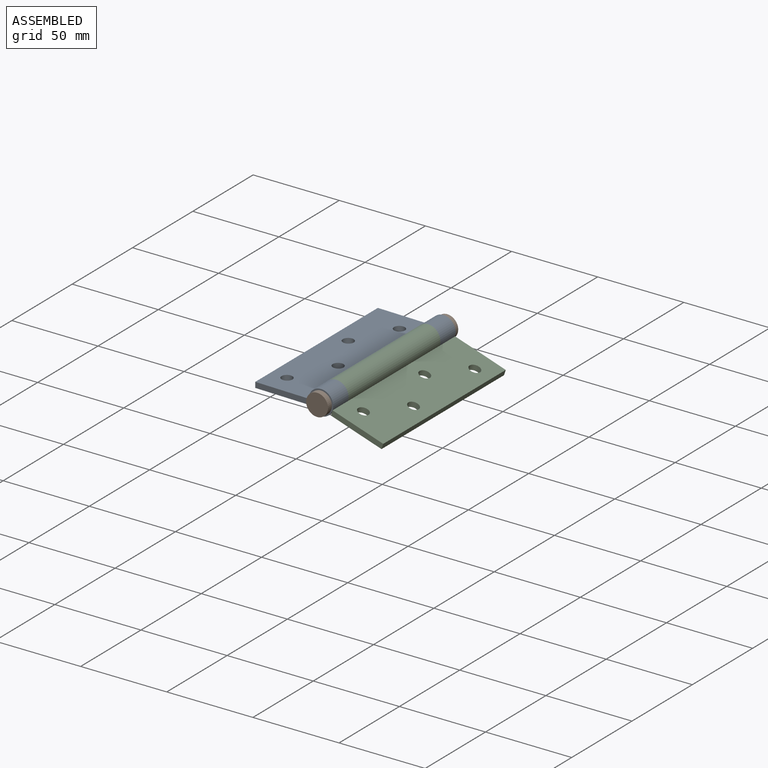
[diagram: assembled view]
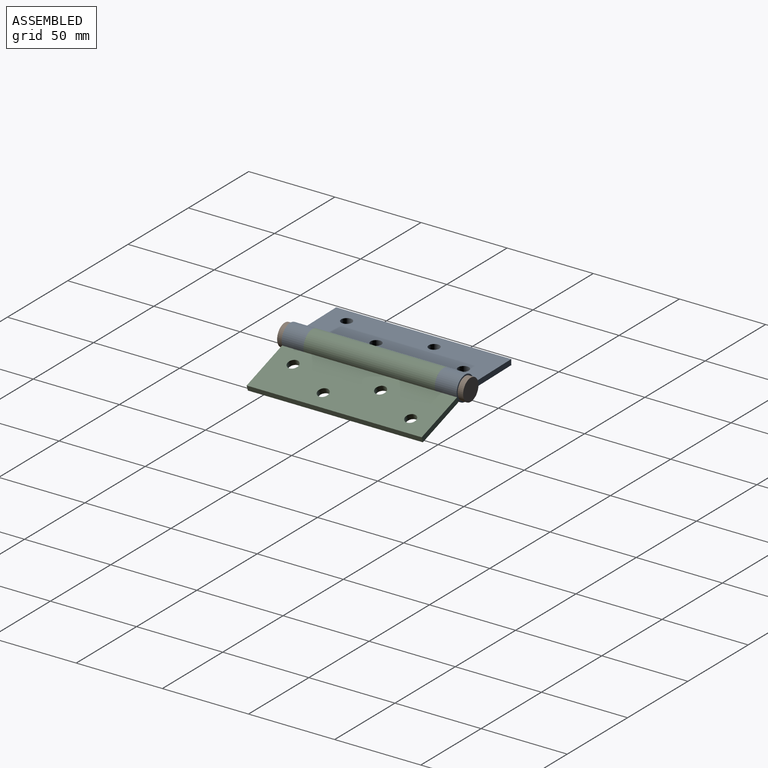
[diagram: assembled view, second angle]
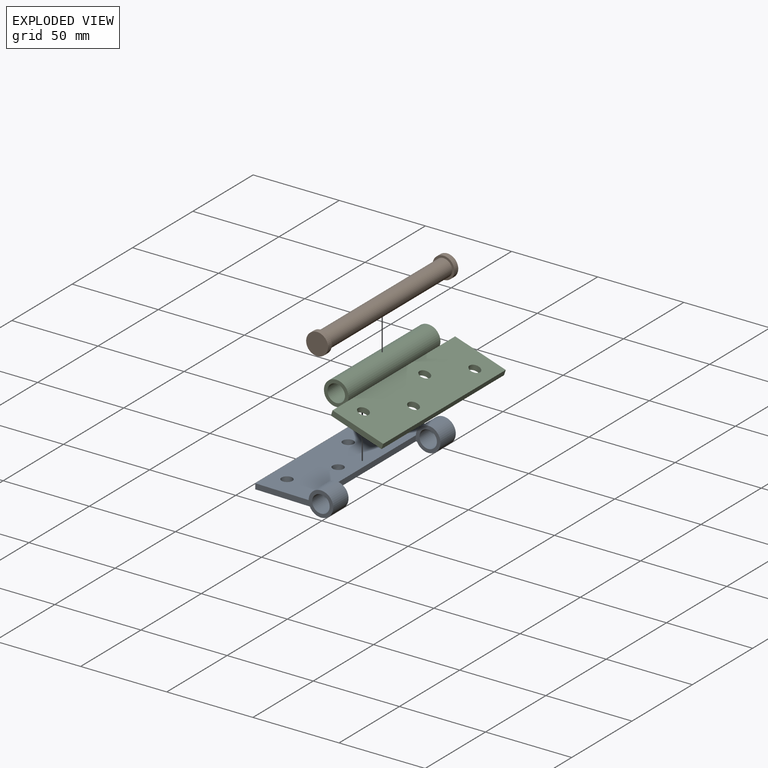
[diagram: exploded view]
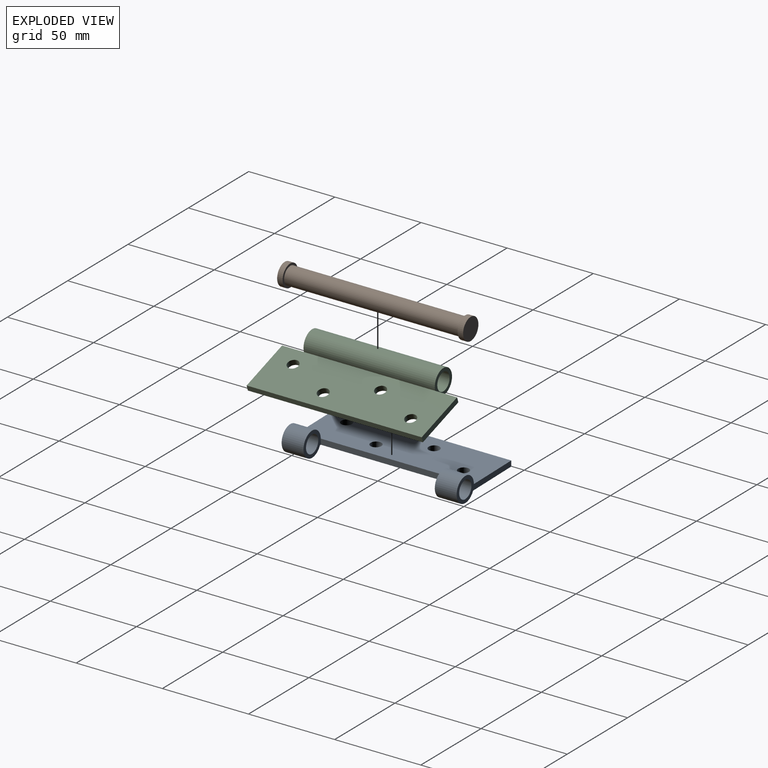
[diagram: exploded view, second angle]
ASSEMBLY  parts=3 mates=2
PART A: 15 faces, bbox 45.2x101.6x14.3 mm
  f0: cylinder r=5.08mm len=12.7mm, axis (0,1,0), area 405.4mm2, adj f6,f10
  f1: plane 101.6x31.7mm, normal (0,0,-1), area 3037.4mm2, adj f2,f4,f6,f7,f8,f9,f10,f11
  f2: cylinder r=7.14mm len=101.6mm, axis (0,1,0), area 1061.2mm2, adj f1,f3,f6,f7,f8,f9,f10
  f3: plane 101.6x30.96mm, normal (0,0,1), area 3018.5mm2, adj f2,f4,f6,f7,f11,f12,f13,f14
  f4: plane 101.6x3.18mm, normal (-1,0,0), area 322.6mm2, adj f1,f3,f6,f7
  f5: cylinder r=5.08mm len=12.7mm, axis (0,1,0), area 405.4mm2, adj f7,f9
  f6: plane 45.24x14.29mm, normal (0,-1,0), area 178.3mm2, adj f0,f1,f2,f3,f4
  f7: plane 45.24x14.29mm, normal (0,1,0), area 178.3mm2, adj f1,f2,f3,f4,f5
  f8: plane 76.2x3.24mm, normal (1,0,0), area 246.6mm2, adj f1,f2,f9,f10
  f9: plane 14.29x14.29mm, normal (0,-1,0), area 80mm2, adj f1,f2,f5,f8
  f10: plane 14.29x14.29mm, normal (0,1,0), area 80mm2, adj f0,f1,f2,f8
  f11: cylinder r=3.17mm len=6.35mm, axis (0,0,1), area 63.3mm2, adj f1,f3
  f12: cylinder r=3.17mm len=6.35mm, axis (0,0,1), area 63.3mm2, adj f1,f3
  f13: cylinder r=3.17mm len=6.35mm, axis (0,0,1), area 63.3mm2, adj f1,f3
  f14: cylinder r=3.17mm len=6.35mm, axis (0,0,1), area 63.3mm2, adj f1,f3
PART B: 7 faces, bbox 12.7x108x12.7 mm
  f0: cylinder r=5.08mm len=101.6mm, axis (0,1,0), area 3242.9mm2, adj f3,f6
  f1: cylinder r=6.35mm len=12.7mm, axis (0,1,0), area 126.7mm2, adj f2,f3
  f2: plane 12.7x12.7mm, normal (0,-1,0), area 126.7mm2, adj f1
  f3: plane 12.7x12.7mm, normal (0,1,0), area 45.6mm2, adj f0,f1
  f4: cylinder r=6.35mm len=12.7mm, axis (0,-1,0), area 126.7mm2, adj f5,f6
  f5: plane 12.7x12.7mm, normal (0,1,0), area 126.7mm2, adj f4
  f6: plane 12.7x12.7mm, normal (0,-1,0), area 45.6mm2, adj f0,f4
PART C: 15 faces, bbox 45.2x101.6x14.3 mm
  f0: cylinder r=7.14mm len=76.2mm, axis (0,1,0), area 3169.6mm2, adj f1,f2,f6,f8
  f1: plane 101.6x31.7mm, normal (0,0,-1), area 3075.2mm2, adj f0,f3,f4,f5,f6,f7,f8,f9
  f2: plane 101.6x30.96mm, normal (0,0,1), area 3018.5mm2, adj f0,f3,f4,f5,f7,f9,f11,f12
  f3: plane 101.6x3.18mm, normal (1,0,0), area 322.6mm2, adj f1,f2,f4,f5
  f4: plane 30.96x3.18mm, normal (0,-1,0), area 98.3mm2, adj f1,f2,f3,f7
  f5: plane 30.96x3.18mm, normal (0,1,0), area 98.3mm2, adj f1,f2,f3,f9
  f6: plane 14.29x14.29mm, normal (0,-1,0), area 80mm2, adj f0,f1,f7,f10
  f7: plane 12.7x3.18mm, normal (-1,0,0), area 40.3mm2, adj f1,f2,f4,f6
  f8: plane 14.29x14.29mm, normal (0,1,0), area 80mm2, adj f0,f1,f9,f10
  f9: plane 12.7x3.18mm, normal (-1,0,0), area 40.3mm2, adj f1,f2,f5,f8
  f10: cylinder r=5.08mm len=76.2mm, axis (0,1,0), area 2432.2mm2, adj f6,f8
  f11: cylinder r=3.17mm len=6.35mm, axis (0,0,1), area 63.3mm2, adj f1,f2
  f12: cylinder r=3.17mm len=6.35mm, axis (0,0,1), area 63.3mm2, adj f1,f2
  f13: cylinder r=3.17mm len=6.35mm, axis (0,0,1), area 63.3mm2, adj f1,f2
  f14: cylinder r=3.17mm len=6.35mm, axis (0,0,1), area 63.3mm2, adj f1,f2
PLACE A rot(axis=(0,1,0),1deg) t=(-14.64,0,0.26)mm
PLACE B at identity fixed
PLACE C rot(axis=(0,1,0),18.4deg) t=(-1,0,-3.01)mm
MATE revolute C.f10 <-> A.f0  axis (0,1,0) through (0,-38.1,0)mm
MATE revolute A.f0 <-> B.f0  axis (0,1,0) through (0,-50.8,0)mm
